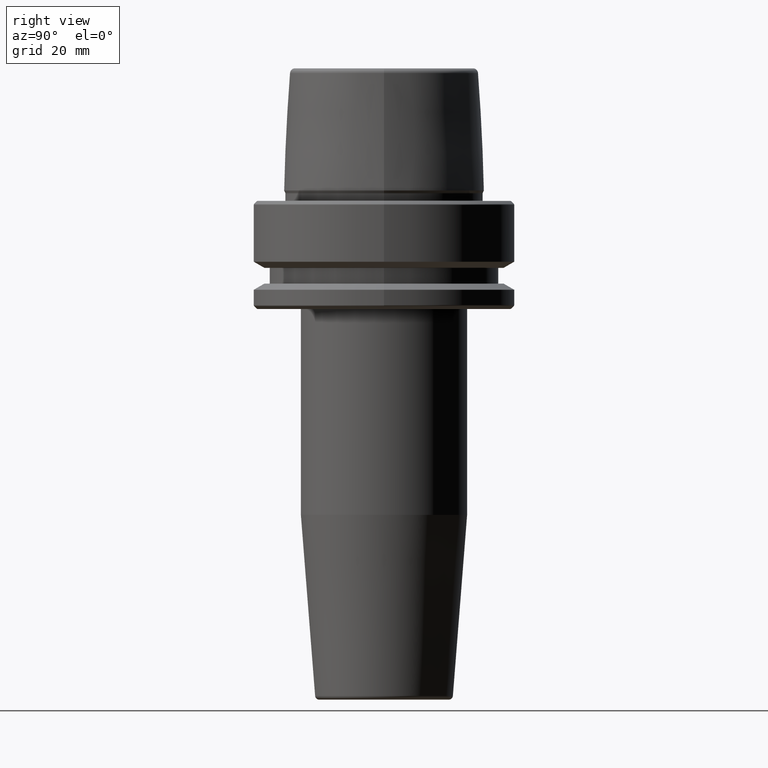
[diagram: clean part render]
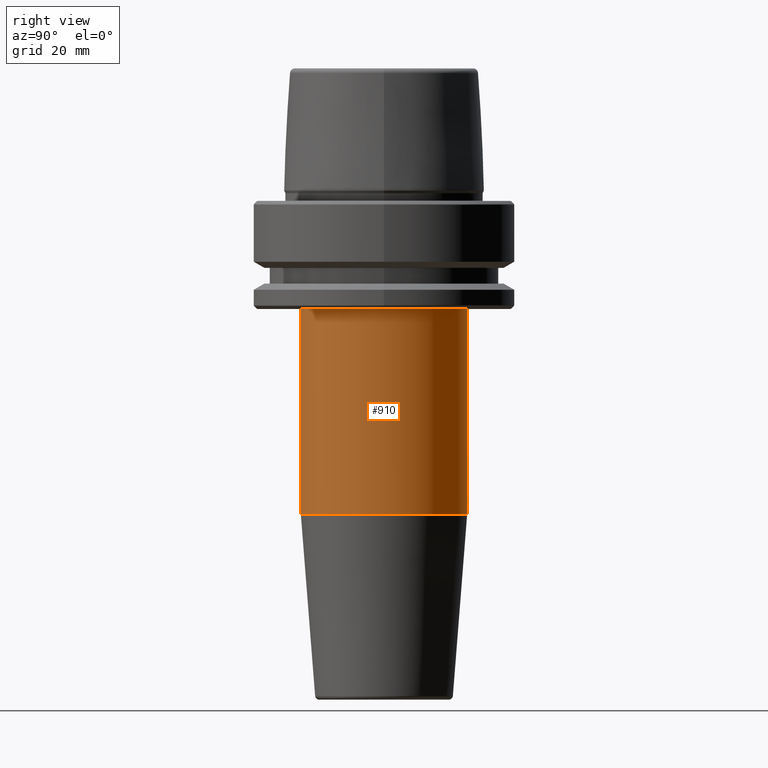
[diagram: same view with one face highlighted and labeled with its STEP entity id]
A machine part, right view. The second image highlights one B-rep face of the part: STEP entity #910.
In plain terms, the highlighted cylindrical surface (partial cylindrical patch) has radius 20 mm, axis along (-0, 0, -1).
Its self-contained STEP definition (entity closure, byte-faithful):
#36 = CIRCLE ( 'NONE', #906, 19.99999999999998600 ) ;
#63 = EDGE_LOOP ( 'NONE', ( #261, #935, #124, #256 ) ) ;
#88 = EDGE_CURVE ( 'NONE', #986, #738, #36, .T. ) ;
#124 = ORIENTED_EDGE ( 'NONE', *, *, #158, .F. ) ;
#158 = EDGE_CURVE ( 'NONE', #285, #461, #810, .T. ) ;
#233 = EDGE_CURVE ( 'NONE', #986, #285, #996, .T. ) ;
#256 = ORIENTED_EDGE ( 'NONE', *, *, #233, .F. ) ;
#261 = ORIENTED_EDGE ( 'NONE', *, *, #88, .T. ) ;
#265 = CARTESIAN_POINT ( 'NONE',  ( 0.0000000000000000000, -19.99999999999998200, -75.52828342338428100 ) ) ;
#285 = VERTEX_POINT ( 'NONE', #525 ) ;
#338 = CARTESIAN_POINT ( 'NONE',  ( 0.0000000000000000000, 19.99999999999998900, -120.0000000000000000 ) ) ;
#344 = DIRECTION ( 'NONE',  ( 1.000000000000000000, 0.0000000000000000000, 0.0000000000000000000 ) ) ;
#406 = CARTESIAN_POINT ( 'NONE',  ( 0.0000000000000000000, 2.449293598294705300E-015, -120.0000000000000000 ) ) ;
#456 = CARTESIAN_POINT ( 'NONE',  ( 2.449293598294704900E-015, -19.99999999999998600, -26.00000000000001100 ) ) ;
#461 = VERTEX_POINT ( 'NONE', #265 ) ;
#494 = DIRECTION ( 'NONE',  ( 0.0000000000000000000, 1.000000000000000000, 0.0000000000000000000 ) ) ;
#502 = LINE ( 'NONE', #815, #729 ) ;
#525 = CARTESIAN_POINT ( 'NONE',  ( 2.449293598294704500E-015, 19.99999999999998200, -75.52828342338428100 ) ) ;
#593 = DIRECTION ( 'NONE',  ( -0.0000000000000000000, 2.605631487547559100E-017, -1.000000000000000000 ) ) ;
#692 = CARTESIAN_POINT ( 'NONE',  ( 0.0000000000000000000, 19.99999999999998600, -26.00000000000001100 ) ) ;
#724 = EDGE_CURVE ( 'NONE', #738, #461, #502, .T. ) ;
#728 = DIRECTION ( 'NONE',  ( 0.0000000000000000000, 1.000000000000000000, 0.0000000000000000000 ) ) ;
#729 = VECTOR ( 'NONE', #1220, 1000.000000000000000 ) ;
#738 = VERTEX_POINT ( 'NONE', #456 ) ;
#748 = DIRECTION ( 'NONE',  ( -0.0000000000000000000, 2.605631487547559100E-017, -1.000000000000000000 ) ) ;
#778 = VECTOR ( 'NONE', #748, 1000.000000000000000 ) ;
#810 = CIRCLE ( 'NONE', #999, 19.99999999999997900 ) ;
#812 = CYLINDRICAL_SURFACE ( 'NONE', #1116, 19.99999999999998600 ) ;
#815 = CARTESIAN_POINT ( 'NONE',  ( 2.449293598294704900E-015, -19.99999999999998200, -120.0000000000000000 ) ) ;
#903 = FACE_OUTER_BOUND ( 'NONE', #63, .T. ) ;
#906 = AXIS2_PLACEMENT_3D ( 'NONE', #1194, #954, #344 ) ;
#910 = ADVANCED_FACE ( 'NONE', ( #903 ), #812, .T. ) ;
#935 = ORIENTED_EDGE ( 'NONE', *, *, #724, .T. ) ;
#954 = DIRECTION ( 'NONE',  ( 0.0000000000000000000, 0.0000000000000000000, -1.000000000000000000 ) ) ;
#986 = VERTEX_POINT ( 'NONE', #692 ) ;
#996 = LINE ( 'NONE', #338, #778 ) ;
#999 = AXIS2_PLACEMENT_3D ( 'NONE', #1161, #1114, #728 ) ;
#1114 = DIRECTION ( 'NONE',  ( -0.0000000000000000000, 2.605631487547559100E-017, -1.000000000000000000 ) ) ;
#1116 = AXIS2_PLACEMENT_3D ( 'NONE', #406, #593, #494 ) ;
#1161 = CARTESIAN_POINT ( 'NONE',  ( 0.0000000000000000000, 1.290524548121498600E-015, -75.52828342338428100 ) ) ;
#1194 = CARTESIAN_POINT ( 'NONE',  ( 0.0000000000000000000, 0.0000000000000000000, -26.00000000000001100 ) ) ;
#1220 = DIRECTION ( 'NONE',  ( -0.0000000000000000000, 2.605631487547559100E-017, -1.000000000000000000 ) ) ;